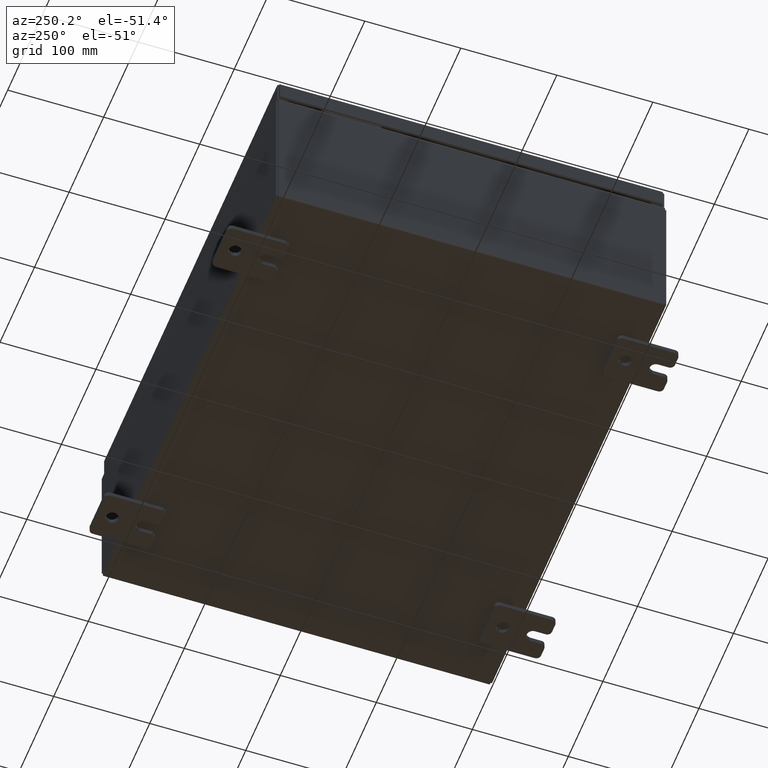
[diagram: clean part render]
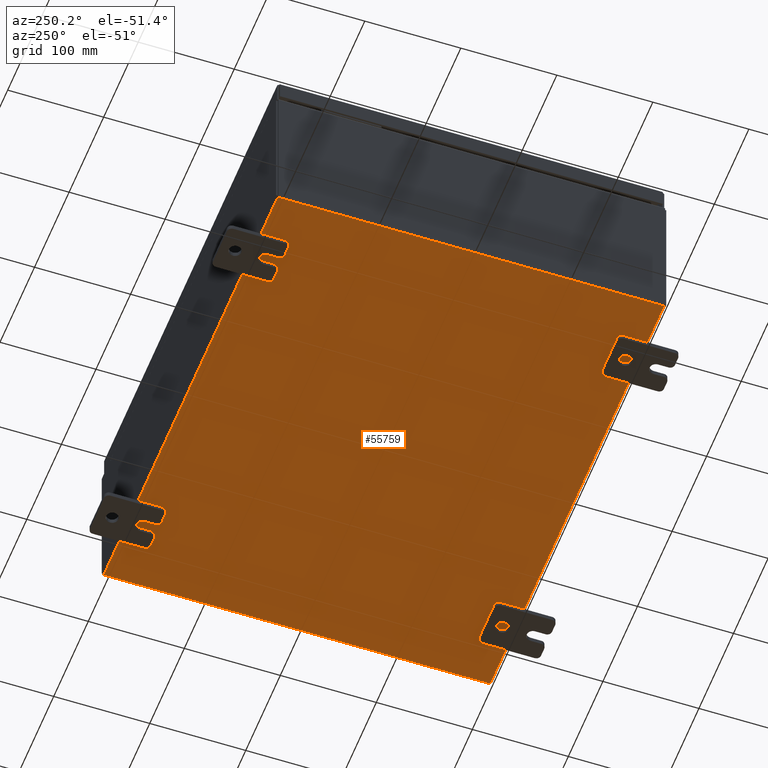
[diagram: same view with one face highlighted and labeled with its STEP entity id]
A machine part, auxiliary view. The second image highlights one B-rep face of the part: STEP entity #55759.
In plain terms, the highlighted planar face has unit normal (0, 0, -1).
Its self-contained STEP definition (entity closure, byte-faithful):
#234 = ORIENTED_EDGE ( 'NONE', *, *, #40593, .F. ) ;
#3366 = VECTOR ( 'NONE', #37443, 39.37007874015748100 ) ;
#6460 = CARTESIAN_POINT ( 'NONE',  ( 9.912300000000000100, 7.925300000000000000, -0.07469999999999994700 ) ) ;
#8736 = LINE ( 'NONE', #54678, #20134 ) ;
#14452 = VECTOR ( 'NONE', #42620, 39.37007874015748100 ) ;
#14651 = FACE_OUTER_BOUND ( 'NONE', #22859, .T. ) ;
#15482 = AXIS2_PLACEMENT_3D ( 'NONE', #27986, #62029, #32881 ) ;
#16662 = ORIENTED_EDGE ( 'NONE', *, *, #28362, .T. ) ;
#18166 = CARTESIAN_POINT ( 'NONE',  ( 9.912300000000000100, 7.925300000000000000, -0.07469999999999994700 ) ) ;
#19040 = LINE ( 'NONE', #18166, #14452 ) ;
#20134 = VECTOR ( 'NONE', #25497, 39.37007874015748100 ) ;
#20202 = CARTESIAN_POINT ( 'NONE',  ( 9.912300000000000100, -7.925300000000000000, -0.07470000000000000300 ) ) ;
#21972 = EDGE_CURVE ( 'NONE', #56718, #25047, #54520, .T. ) ;
#22859 = EDGE_LOOP ( 'NONE', ( #234, #51305, #35327, #16662 ) ) ;
#25047 = VERTEX_POINT ( 'NONE', #53044 ) ;
#25497 = DIRECTION ( 'NONE',  ( 1.000000000000000000, 0.0000000000000000000, 0.0000000000000000000 ) ) ;
#27096 = CARTESIAN_POINT ( 'NONE',  ( -9.912300000000000100, -7.925300000000000000, -0.07469999999999994700 ) ) ;
#27986 = CARTESIAN_POINT ( 'NONE',  ( 0.0000000000000000000, 0.0000000000000000000, -0.07470000000000000300 ) ) ;
#28362 = EDGE_CURVE ( 'NONE', #50361, #35475, #19040, .T. ) ;
#28621 = VECTOR ( 'NONE', #56273, 39.37007874015748100 ) ;
#30739 = LINE ( 'NONE', #42129, #3366 ) ;
#32881 = DIRECTION ( 'NONE',  ( -1.000000000000000000, 0.0000000000000000000, -0.0000000000000000000 ) ) ;
#35327 = ORIENTED_EDGE ( 'NONE', *, *, #41304, .F. ) ;
#35475 = VERTEX_POINT ( 'NONE', #20202 ) ;
#37443 = DIRECTION ( 'NONE',  ( -1.000000000000000000, -0.0000000000000000000, -0.0000000000000000000 ) ) ;
#40593 = EDGE_CURVE ( 'NONE', #56718, #35475, #8736, .T. ) ;
#41304 = EDGE_CURVE ( 'NONE', #50361, #25047, #30739, .T. ) ;
#42129 = CARTESIAN_POINT ( 'NONE',  ( -10.00000000000000000, 7.925300000000000000, -0.07470000000000000300 ) ) ;
#42620 = DIRECTION ( 'NONE',  ( -0.0000000000000000000, -1.000000000000000000, -0.0000000000000000000 ) ) ;
#50361 = VERTEX_POINT ( 'NONE', #6460 ) ;
#51305 = ORIENTED_EDGE ( 'NONE', *, *, #21972, .T. ) ;
#53044 = CARTESIAN_POINT ( 'NONE',  ( -9.912300000000000100, 7.925300000000000000, -0.07470000000000000300 ) ) ;
#54520 = LINE ( 'NONE', #27096, #28621 ) ;
#54678 = CARTESIAN_POINT ( 'NONE',  ( -10.00000000000000000, -7.925300000000000000, -0.07470000000000000300 ) ) ;
#55759 = ADVANCED_FACE ( 'NONE', ( #14651 ), #57144, .T. ) ;
#56273 = DIRECTION ( 'NONE',  ( -0.0000000000000000000, 1.000000000000000000, -0.0000000000000000000 ) ) ;
#56718 = VERTEX_POINT ( 'NONE', #57342 ) ;
#57144 = PLANE ( 'NONE',  #15482 ) ;
#57342 = CARTESIAN_POINT ( 'NONE',  ( -9.912300000000000100, -7.925300000000000000, -0.07469999999999994700 ) ) ;
#62029 = DIRECTION ( 'NONE',  ( 0.0000000000000000000, 0.0000000000000000000, -1.000000000000000000 ) ) ;